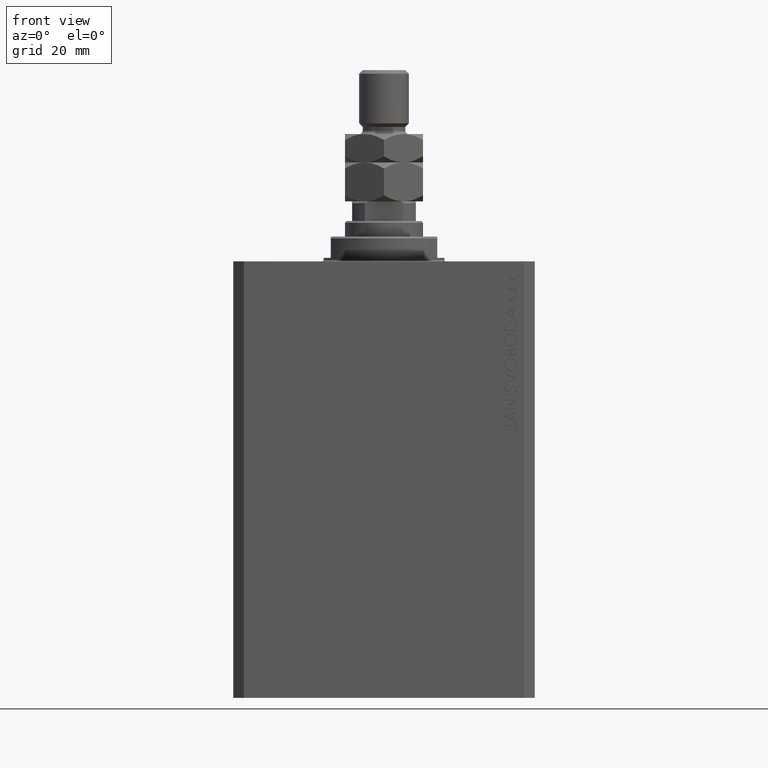
[diagram: clean part render]
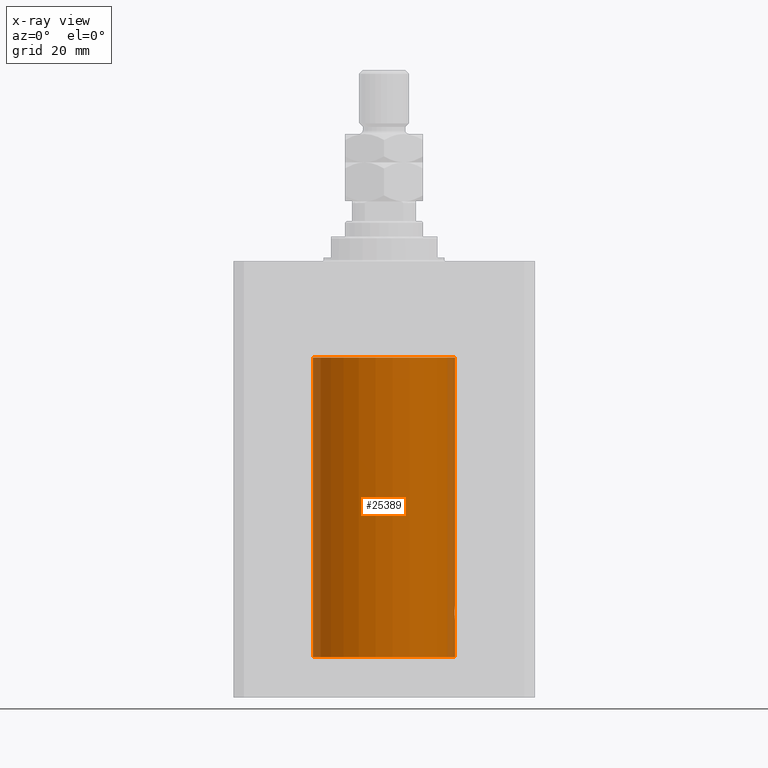
[diagram: x-ray — body ghosted, one internal face saturated and labeled with its STEP entity id]
A machine part, front view, then the same camera in x-ray: the body is ghosted and one INTERNAL B-rep face — a face not visible from any outside direction — is saturated and labeled: STEP entity #25389.
In plain terms, the highlighted cylindrical surface (partial cylindrical patch) has radius 20 mm, axis along (0, 0, 1).
Its self-contained STEP definition (entity closure, byte-faithful):
#1226 = EDGE_CURVE ( 'NONE', #44556, #4955, #44203, .T. ) ;
#1424 = CARTESIAN_POINT ( 'NONE',  ( 0.000000000000000000, 0.000000000000000000, -111.6000000000000085 ) ) ;
#1501 = CARTESIAN_POINT ( 'NONE',  ( 20.00000000000000000, 0.000000000000000000, -111.6000000000000085 ) ) ;
#2672 = ORIENTED_EDGE ( 'NONE', *, *, #29802, .T. ) ;
#4142 = CARTESIAN_POINT ( 'NONE',  ( 19.99450726301181192, -0.5268413099739941430, -100.9468459871092705 ) ) ;
#4228 = CARTESIAN_POINT ( 'NONE',  ( 20.00000000000000000, -1.553109350199128042E-23, -97.00000000000000000 ) ) ;
#4407 = DIRECTION ( 'NONE',  ( 0.000000000000000000, 0.000000000000000000, 1.000000000000000000 ) ) ;
#4955 = VERTEX_POINT ( 'NONE', #44244 ) ;
#5257 = FACE_OUTER_BOUND ( 'NONE', #30840, .T. ) ;
#5602 = CARTESIAN_POINT ( 'NONE',  ( 20.00000000000000000, -1.553109350199128042E-23, -97.00000000000000000 ) ) ;
#5830 = CARTESIAN_POINT ( 'NONE',  ( 19.94343050116685845, -1.506032346525473020, -97.67754857126976731 ) ) ;
#5991 = CARTESIAN_POINT ( 'NONE',  ( 20.00000000000000000, 0.000000000000000000, -111.6000000000000085 ) ) ;
#6062 = CARTESIAN_POINT ( 'NONE',  ( 19.99457156948952985, -0.5245703965536948621, -97.05250028761906833 ) ) ;
#6253 = CARTESIAN_POINT ( 'NONE',  ( 19.90106527362734568, -1.987020983172499422, -99.26214585379852906 ) ) ;
#7634 = ORIENTED_EDGE ( 'NONE', *, *, #40433, .F. ) ;
#9796 = CARTESIAN_POINT ( 'NONE',  ( 19.89974874213243439, -1.999999999999655609, -99.00000000000000000 ) ) ;
#10666 = ORIENTED_EDGE ( 'NONE', *, *, #30055, .F. ) ;
#10678 = EDGE_CURVE ( 'NONE', #44556, #30866, #39802, .T. ) ;
#12843 = CARTESIAN_POINT ( 'NONE',  ( 19.96304361591165133, -1.229269670911803614, -97.40095624928315488 ) ) ;
#13743 = ORIENTED_EDGE ( 'NONE', *, *, #1226, .T. ) ;
#14422 = CARTESIAN_POINT ( 'NONE',  ( 19.96296989966237945, -1.230425635331405365, -100.5981187666770893 ) ) ;
#14871 = CARTESIAN_POINT ( 'NONE',  ( 20.00000000000000000, 1.967327733996653312E-15, -101.0000000000000000 ) ) ;
#15274 = DIRECTION ( 'NONE',  ( -0.000000000000000000, -0.000000000000000000, 1.000000000000000000 ) ) ;
#15430 = B_SPLINE_CURVE_WITH_KNOTS ( 'NONE', 3,
 ( #44783, #24004, #6253, #20499, #16995, #45479, #31234, #39629, #17924, #14422, #25628, #4142, #28436, #14871 ),
 .UNSPECIFIED., .F., .F.,
 ( 4, 2, 2, 2, 2, 2, 4 ),
 ( 0.009386006266958986724, 0.009776776943204319378, 0.01016754761944965377, 0.01055831829569498642, 0.01094908897194031908, 0.01173063032443095663, 0.01251217167692159418 ),
 .UNSPECIFIED. ) ;
#15545 = VERTEX_POINT ( 'NONE', #45921 ) ;
#15598 = CARTESIAN_POINT ( 'NONE',  ( 0.000000000000000000, 0.000000000000000000, -27.10000000000000142 ) ) ;
#15662 = DIRECTION ( 'NONE',  ( 1.000000000000000000, 0.000000000000000000, 0.000000000000000000 ) ) ;
#15748 = CARTESIAN_POINT ( 'NONE',  ( 20.00000000000000000, 0.000000000000000000, -27.10000000000000142 ) ) ;
#16437 = VECTOR ( 'NONE', #39934, 1000.000000000000000 ) ;
#16576 = CARTESIAN_POINT ( 'NONE',  ( 19.93679035661676835, -1.590502522866548585, -97.78041502771402804 ) ) ;
#16726 = EDGE_CURVE ( 'NONE', #32161, #30866, #37303, .T. ) ;
#16805 = CARTESIAN_POINT ( 'NONE',  ( 19.90106531167246828, -1.987021080928412342, -98.73779127013027335 ) ) ;
#16995 = CARTESIAN_POINT ( 'NONE',  ( 19.90981966846453588, -1.897793276286218411, -99.64463361322839319 ) ) ;
#17924 = CARTESIAN_POINT ( 'NONE',  ( 19.94337316053471909, -1.506783194222099720, -100.3215850766146531 ) ) ;
#18497 = VECTOR ( 'NONE', #22060, 1000.000000000000000 ) ;
#19200 = AXIS2_PLACEMENT_3D ( 'NONE', #40289, #31390, #34434 ) ;
#19558 = DIRECTION ( 'NONE',  ( 1.000000000000000000, 0.000000000000000000, 0.000000000000000000 ) ) ;
#19842 = CARTESIAN_POINT ( 'NONE',  ( 20.00000000000000000, -0.2612062508298597097, -97.00000000000005684 ) ) ;
#20078 = CARTESIAN_POINT ( 'NONE',  ( 19.90983652367462042, -1.897617924364799924, -98.35484020333801425 ) ) ;
#20499 = CARTESIAN_POINT ( 'NONE',  ( 19.90607187811043843, -1.936221525612430661, -99.51770555336665325 ) ) ;
#20544 = CARTESIAN_POINT ( 'NONE',  ( 19.97612863609106171, -1.006156579624605252, -97.25197878504231142 ) ) ;
#22060 = DIRECTION ( 'NONE',  ( -0.000000000000000000, -0.000000000000000000, 1.000000000000000000 ) ) ;
#22657 = AXIS2_PLACEMENT_3D ( 'NONE', #1424, #33644, #15662 ) ;
#22797 = ORIENTED_EDGE ( 'NONE', *, *, #10678, .F. ) ;
#23705 = VECTOR ( 'NONE', #15274, 1000.000000000000000 ) ;
#23812 = EDGE_CURVE ( 'NONE', #39460, #32161, #35975, .T. ) ;
#24004 = CARTESIAN_POINT ( 'NONE',  ( 19.89974874213243083, -1.999999999999655165, -99.13207361806611573 ) ) ;
#25389 = ADVANCED_FACE ( 'NONE', ( #5257 ), #26063, .F. ) ;
#25478 = CARTESIAN_POINT ( 'NONE',  ( -20.00000000000000000, 2.449293598294706513E-15, -111.6000000000000085 ) ) ;
#25628 = CARTESIAN_POINT ( 'NONE',  ( 19.97604812261521090, -1.007662572237620457, -100.7471082404733096 ) ) ;
#26063 = CYLINDRICAL_SURFACE ( 'NONE', #19200, 20.00000000000000000 ) ;
#26458 = CARTESIAN_POINT ( 'NONE',  ( -20.00000000000000000, 2.449293598294706513E-15, -27.10000000000000142 ) ) ;
#28436 = CARTESIAN_POINT ( 'NONE',  ( 19.99999999999999645, -0.2642773949967771041, -100.9999999999999289 ) ) ;
#29802 = EDGE_CURVE ( 'NONE', #4955, #15545, #15430, .T. ) ;
#30055 = EDGE_CURVE ( 'NONE', #34179, #15545, #33022, .T. ) ;
#30582 = CARTESIAN_POINT ( 'NONE',  ( 19.90607912840593485, -1.936147476084615127, -98.48198538155280346 ) ) ;
#30840 = EDGE_LOOP ( 'NONE', ( #7634, #43650, #35761, #22797, #13743, #2672, #10666 ) ) ;
#30866 = VERTEX_POINT ( 'NONE', #15748 ) ;
#31234 = CARTESIAN_POINT ( 'NONE',  ( 19.92464121718639802, -1.736076547215872790, -100.0015422135783894 ) ) ;
#31390 = DIRECTION ( 'NONE',  ( -0.000000000000000000, -0.000000000000000000, 1.000000000000000000 ) ) ;
#32161 = VERTEX_POINT ( 'NONE', #26458 ) ;
#33022 = LINE ( 'NONE', #1501, #18497 ) ;
#33644 = DIRECTION ( 'NONE',  ( 0.000000000000000000, 0.000000000000000000, 1.000000000000000000 ) ) ;
#34088 = CARTESIAN_POINT ( 'NONE',  ( 19.92467362751852988, -1.735709893904968437, -97.99780393930582534 ) ) ;
#34179 = VERTEX_POINT ( 'NONE', #5991 ) ;
#34434 = DIRECTION ( 'NONE',  ( 1.000000000000000000, 0.000000000000000000, 0.000000000000000000 ) ) ;
#35761 = ORIENTED_EDGE ( 'NONE', *, *, #16726, .T. ) ;
#35975 = LINE ( 'NONE', #25478, #16437 ) ;
#37303 = CIRCLE ( 'NONE', #43264, 20.00000000000000000 ) ;
#38516 = CARTESIAN_POINT ( 'NONE',  ( 19.91915476385079842, -1.797169352086260830, -98.11266282055724730 ) ) ;
#39460 = VERTEX_POINT ( 'NONE', #41011 ) ;
#39629 = CARTESIAN_POINT ( 'NONE',  ( 19.93674030556024590, -1.591123942389839119, -100.2187588700503227 ) ) ;
#39802 = LINE ( 'NONE', #40024, #23705 ) ;
#39934 = DIRECTION ( 'NONE',  ( -0.000000000000000000, -0.000000000000000000, 1.000000000000000000 ) ) ;
#40024 = CARTESIAN_POINT ( 'NONE',  ( 20.00000000000000000, 0.000000000000000000, -111.6000000000000085 ) ) ;
#40289 = CARTESIAN_POINT ( 'NONE',  ( 0.000000000000000000, 0.000000000000000000, -111.6000000000000085 ) ) ;
#40433 = EDGE_CURVE ( 'NONE', #39460, #34179, #42789, .T. ) ;
#41011 = CARTESIAN_POINT ( 'NONE',  ( -20.00000000000000000, 2.449293598294706513E-15, -111.6000000000000085 ) ) ;
#42789 = CIRCLE ( 'NONE', #22657, 20.00000000000000000 ) ;
#43264 = AXIS2_PLACEMENT_3D ( 'NONE', #15598, #4407, #19558 ) ;
#43650 = ORIENTED_EDGE ( 'NONE', *, *, #23812, .T. ) ;
#44203 = B_SPLINE_CURVE_WITH_KNOTS ( 'NONE', 3,
 ( #5602, #19842, #6062, #20544, #12843, #5830, #16576, #34088, #38516, #20078, #30582, #16805, #45285, #9796 ),
 .UNSPECIFIED., .F., .F.,
 ( 4, 2, 2, 2, 2, 2, 4 ),
 ( 0.006256819553330524898, 0.007039116231737640138, 0.007821412910144754510, 0.008212561249348312997, 0.008603709588551871484, 0.008994857927755429972, 0.009386006266958986724 ),
 .UNSPECIFIED. ) ;
#44244 = CARTESIAN_POINT ( 'NONE',  ( 19.89974874213243439, -1.999999999999655609, -99.00000000000000000 ) ) ;
#44556 = VERTEX_POINT ( 'NONE', #4228 ) ;
#44783 = CARTESIAN_POINT ( 'NONE',  ( 19.89974874213243439, -1.999999999999655609, -99.00000000000000000 ) ) ;
#45285 = CARTESIAN_POINT ( 'NONE',  ( 19.89974874213243439, -1.999999999999655609, -98.86779873849403089 ) ) ;
#45479 = CARTESIAN_POINT ( 'NONE',  ( 19.91912874598169125, -1.797456133345314511, -99.88674870370387282 ) ) ;
#45921 = CARTESIAN_POINT ( 'NONE',  ( 20.00000000000000000, 1.967327733996653312E-15, -101.0000000000000000 ) ) ;